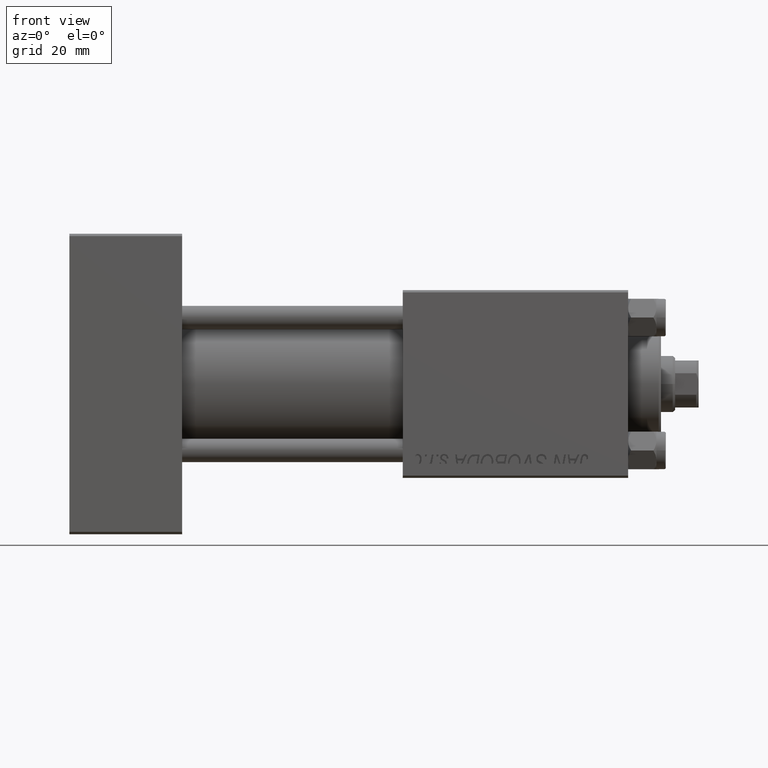
[diagram: clean part render]
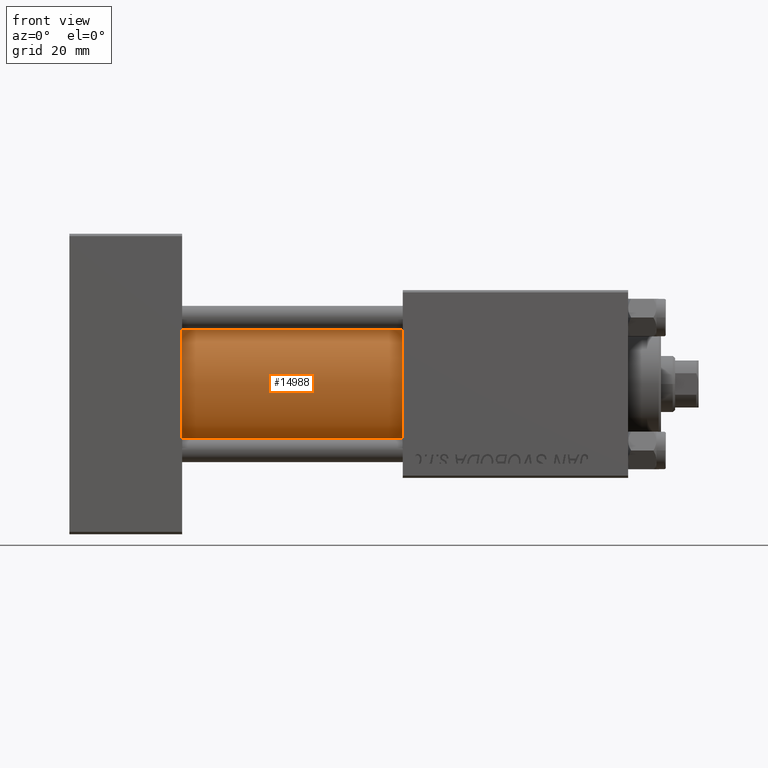
[diagram: same view with one face highlighted and labeled with its STEP entity id]
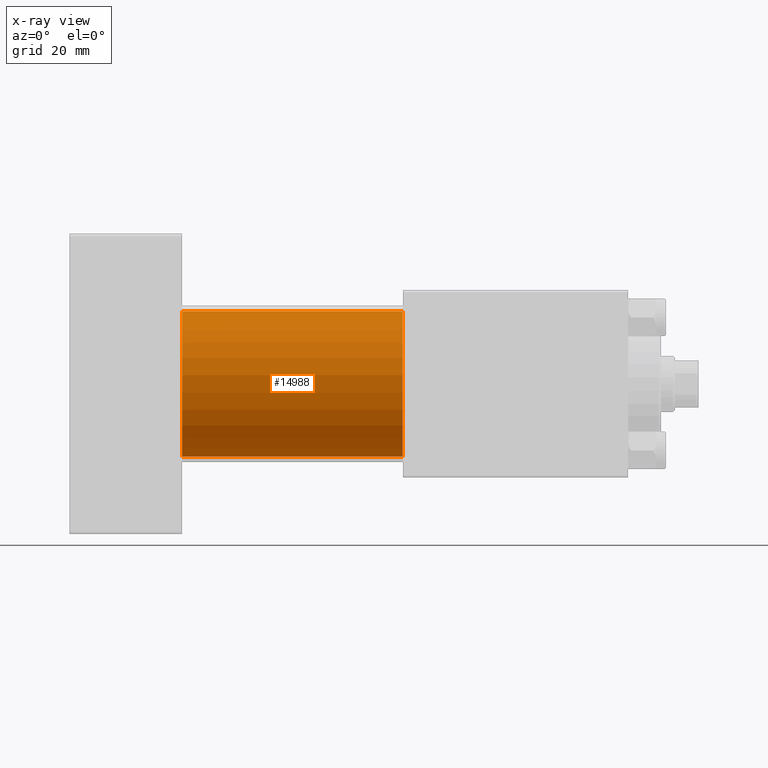
[diagram: x-ray of the same camera — body ghosted, the highlighted face saturated]
A machine part, front view. The second image highlights one B-rep face of the part: STEP entity #14988.
The next image is the same camera in x-ray: the body ghosted, the highlighted face saturated — about 0% of this face is hidden behind the body in this view.
In plain terms, the highlighted cylindrical surface (partial cylindrical patch) has radius 15.5 mm, axis along (-1, -0, -0).
Its self-contained STEP definition (entity closure, byte-faithful):
#196 = DIRECTION ( 'NONE',  ( 1.000000000000000000, 0.000000000000000000, 0.000000000000000000 ) ) ;
#1385 = CARTESIAN_POINT ( 'NONE',  ( 71.00000000000001421, -2.602085213965210642E-15, 0.000000000000000000 ) ) ;
#1653 = CYLINDRICAL_SURFACE ( 'NONE', #10311, 15.50000000000000000 ) ;
#5248 = CARTESIAN_POINT ( 'NONE',  ( 24.00000000000000000, -7.038826752868131828E-16, -15.50000000000000000 ) ) ;
#5689 = CARTESIAN_POINT ( 'NONE',  ( 71.00000000000001421, -7.038826752868131828E-16, -15.50000000000000000 ) ) ;
#7011 = CIRCLE ( 'NONE', #33797, 15.50000000000000000 ) ;
#7664 = EDGE_LOOP ( 'NONE', ( #9874, #28136, #14411, #47222 ) ) ;
#7915 = CARTESIAN_POINT ( 'NONE',  ( 71.00000000000001421, -2.602085213965210642E-15, 15.50000000000000000 ) ) ;
#9874 = ORIENTED_EDGE ( 'NONE', *, *, #30179, .F. ) ;
#10311 = AXIS2_PLACEMENT_3D ( 'NONE', #49179, #33653, #10583 ) ;
#10583 = DIRECTION ( 'NONE',  ( 0.000000000000000000, 0.000000000000000000, 1.000000000000000000 ) ) ;
#14411 = ORIENTED_EDGE ( 'NONE', *, *, #43338, .T. ) ;
#14988 = ADVANCED_FACE ( 'NONE', ( #33140 ), #1653, .T. ) ;
#16826 = DIRECTION ( 'NONE',  ( -1.000000000000000000, -0.000000000000000000, -0.000000000000000000 ) ) ;
#17746 = VERTEX_POINT ( 'NONE', #31702 ) ;
#19237 = VERTEX_POINT ( 'NONE', #34242 ) ;
#19361 = AXIS2_PLACEMENT_3D ( 'NONE', #51422, #196, #31689 ) ;
#22598 = VERTEX_POINT ( 'NONE', #29726 ) ;
#25781 = DIRECTION ( 'NONE',  ( 0.000000000000000000, 0.000000000000000000, -1.000000000000000000 ) ) ;
#28136 = ORIENTED_EDGE ( 'NONE', *, *, #44471, .F. ) ;
#28368 = LINE ( 'NONE', #7915, #40583 ) ;
#29726 = CARTESIAN_POINT ( 'NONE',  ( 24.00000000000000000, -2.602085213965210642E-15, 15.50000000000000000 ) ) ;
#29727 = DIRECTION ( 'NONE',  ( 1.000000000000000000, 0.000000000000000000, 0.000000000000000000 ) ) ;
#30179 = EDGE_CURVE ( 'NONE', #17746, #46246, #42170, .T. ) ;
#31689 = DIRECTION ( 'NONE',  ( 0.000000000000000000, 0.000000000000000000, 1.000000000000000000 ) ) ;
#31702 = CARTESIAN_POINT ( 'NONE',  ( 71.00000000000001421, -7.038826752868131828E-16, -15.50000000000000000 ) ) ;
#32550 = VECTOR ( 'NONE', #49809, 1000.000000000000000 ) ;
#33140 = FACE_OUTER_BOUND ( 'NONE', #7664, .T. ) ;
#33653 = DIRECTION ( 'NONE',  ( -1.000000000000000000, -0.000000000000000000, -0.000000000000000000 ) ) ;
#33797 = AXIS2_PLACEMENT_3D ( 'NONE', #1385, #29727, #25781 ) ;
#34242 = CARTESIAN_POINT ( 'NONE',  ( 71.00000000000001421, -2.602085213965210642E-15, 15.50000000000000000 ) ) ;
#34925 = EDGE_CURVE ( 'NONE', #22598, #46246, #50357, .T. ) ;
#40583 = VECTOR ( 'NONE', #16826, 1000.000000000000000 ) ;
#42170 = LINE ( 'NONE', #5689, #32550 ) ;
#43338 = EDGE_CURVE ( 'NONE', #19237, #22598, #28368, .T. ) ;
#44471 = EDGE_CURVE ( 'NONE', #19237, #17746, #7011, .T. ) ;
#46246 = VERTEX_POINT ( 'NONE', #5248 ) ;
#47222 = ORIENTED_EDGE ( 'NONE', *, *, #34925, .T. ) ;
#49179 = CARTESIAN_POINT ( 'NONE',  ( 71.00000000000001421, -2.602085213965210642E-15, 0.000000000000000000 ) ) ;
#49809 = DIRECTION ( 'NONE',  ( -1.000000000000000000, -0.000000000000000000, -0.000000000000000000 ) ) ;
#50357 = CIRCLE ( 'NONE', #19361, 15.50000000000000000 ) ;
#51422 = CARTESIAN_POINT ( 'NONE',  ( 24.00000000000000000, -2.602085213965210642E-15, 0.000000000000000000 ) ) ;